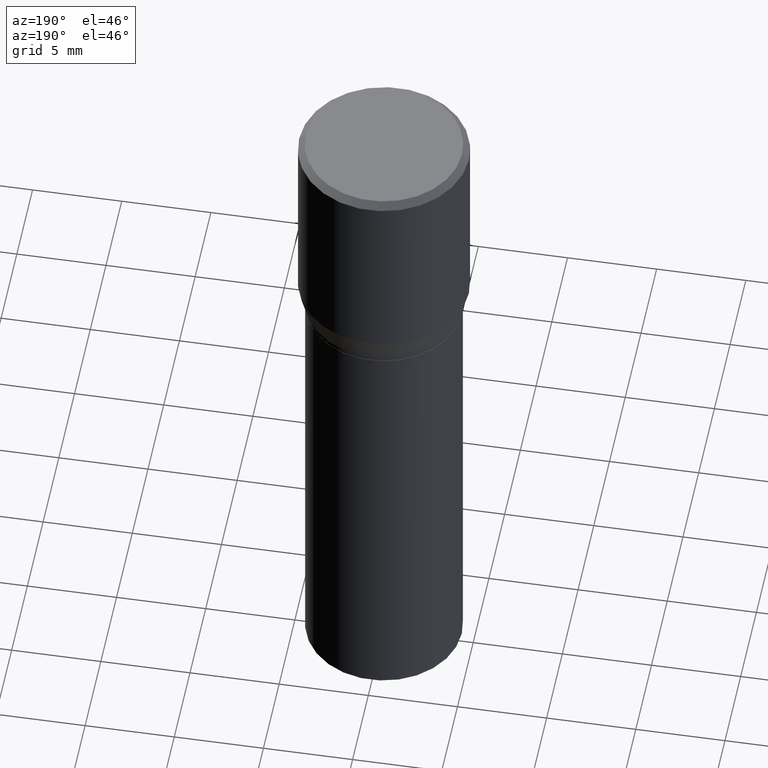
[diagram: clean part render]
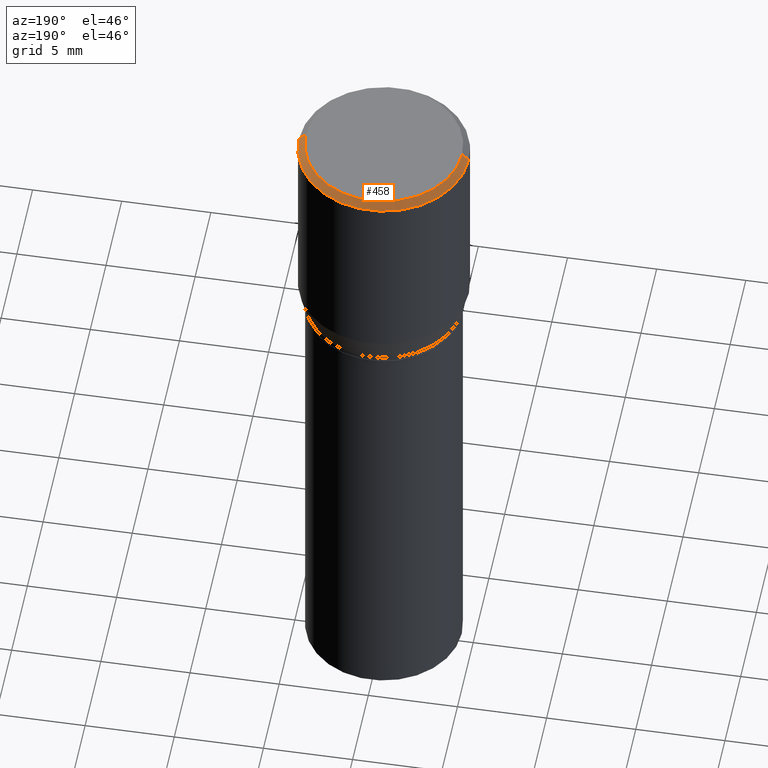
[diagram: same view with one face highlighted and labeled with its STEP entity id]
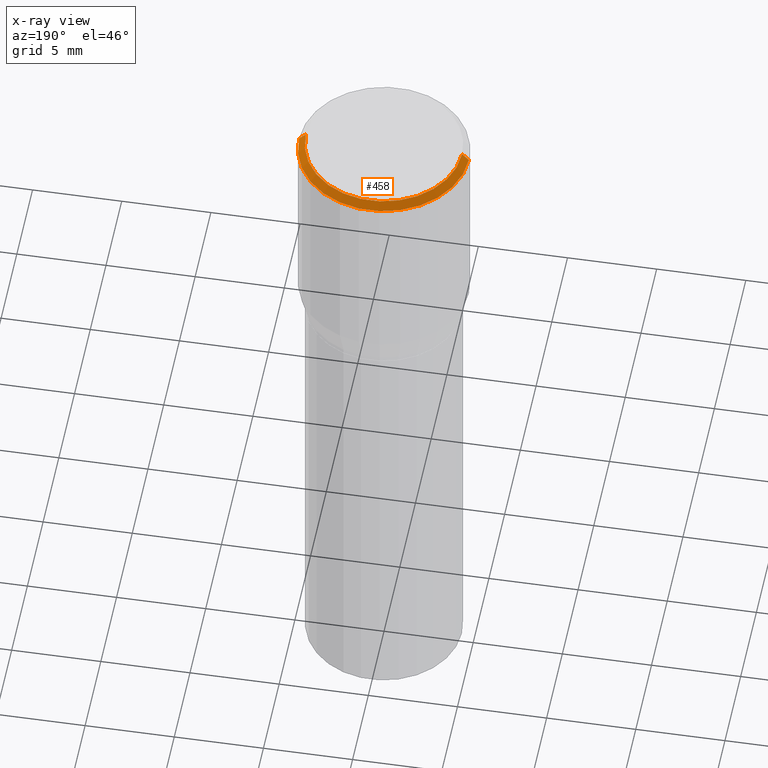
[diagram: x-ray of the same camera — body ghosted, the highlighted face saturated]
A machine part, auxiliary view. The second image highlights one B-rep face of the part: STEP entity #458.
The next image is the same camera in x-ray: the body ghosted, the highlighted face saturated — about 0% of this face is hidden behind the body in this view.
In plain terms, the highlighted conical surface has half-angle 45 deg.
Its self-contained STEP definition (entity closure, byte-faithful):
#3 = EDGE_CURVE ( 'NONE', #219, #31, #153, .T. ) ;
#14 = AXIS2_PLACEMENT_3D ( 'NONE', #132, #463, #207 ) ;
#30 = DIRECTION ( 'NONE',  ( 1.000000000000000000, -6.982962677686266711E-15, 4.876912640186324808E-29 ) ) ;
#31 = VERTEX_POINT ( 'NONE', #187 ) ;
#34 = ORIENTED_EDGE ( 'NONE', *, *, #277, .T. ) ;
#46 = FACE_OUTER_BOUND ( 'NONE', #100, .T. ) ;
#55 = AXIS2_PLACEMENT_3D ( 'NONE', #390, #60, #30 ) ;
#57 = CARTESIAN_POINT ( 'NONE',  ( 0.1725000000000000144, -1.261075749640199308E-15, -2.636744989014362231E-17 ) ) ;
#60 = DIRECTION ( 'NONE',  ( -2.445468806185136597E-29, 3.491481338843145583E-15, 1.000000000000000000 ) ) ;
#80 = DIRECTION ( 'NONE',  ( -1.000000000000000000, 6.982962677686265922E-15, 0.000000000000000000 ) ) ;
#100 = EDGE_LOOP ( 'NONE', ( #314, #270, #34, #431 ) ) ;
#112 = CIRCLE ( 'NONE', #55, 0.1725000000000000144 ) ;
#130 = VERTEX_POINT ( 'NONE', #382 ) ;
#132 = CARTESIAN_POINT ( 'NONE',  ( 3.668203209277705088E-31, -5.237222008264718399E-17, -0.01499999999999999944 ) ) ;
#147 = EDGE_CURVE ( 'NONE', #130, #203, #412, .T. ) ;
#148 = CARTESIAN_POINT ( 'NONE',  ( 3.668203209277705088E-31, -5.237222008264718399E-17, -0.01499999999999999944 ) ) ;
#153 = LINE ( 'NONE', #188, #419 ) ;
#183 = CIRCLE ( 'NONE', #14, 0.1875000000000000278 ) ;
#187 = CARTESIAN_POINT ( 'NONE',  ( 0.1875000000000000278, -1.361677722148822285E-15, -0.01499999999999999944 ) ) ;
#188 = CARTESIAN_POINT ( 'NONE',  ( 0.1875000000000000278, -1.338715594664809642E-15, -0.01499999999999999944 ) ) ;
#203 = VERTEX_POINT ( 'NONE', #378 ) ;
#207 = DIRECTION ( 'NONE',  ( 1.000000000000000000, -6.982962677686265922E-15, 0.000000000000000000 ) ) ;
#219 = VERTEX_POINT ( 'NONE', #57 ) ;
#221 = VECTOR ( 'NONE', #343, 39.37007874015748143 ) ;
#249 = DIRECTION ( 'NONE',  ( 2.445468806185136597E-29, -3.491481338843145583E-15, -1.000000000000000000 ) ) ;
#256 = CONICAL_SURFACE ( 'NONE', #422, 0.1875000000000000278, 0.7853981633974495002 ) ;
#270 = ORIENTED_EDGE ( 'NONE', *, *, #3, .T. ) ;
#277 = EDGE_CURVE ( 'NONE', #31, #203, #183, .T. ) ;
#282 = EDGE_CURVE ( 'NONE', #219, #130, #112, .T. ) ;
#314 = ORIENTED_EDGE ( 'NONE', *, *, #282, .F. ) ;
#337 = DIRECTION ( 'NONE',  ( 0.7071067811865483499, -7.319954787623257623E-15, -0.7071067811865466846 ) ) ;
#343 = DIRECTION ( 'NONE',  ( -0.7071067811865483499, 2.468850131082265738E-15, -0.7071067811865466846 ) ) ;
#375 = CARTESIAN_POINT ( 'NONE',  ( -0.1875000000000000278, 1.256933281983527732E-15, -0.01499999999999999944 ) ) ;
#378 = CARTESIAN_POINT ( 'NONE',  ( -0.1875000000000000278, 5.523056003441748841E-16, -0.01499999999999999944 ) ) ;
#382 = CARTESIAN_POINT ( 'NONE',  ( -0.1725000000000000144, 1.230747171942204192E-15, -2.636744989016075847E-17 ) ) ;
#390 = CARTESIAN_POINT ( 'NONE',  ( 6.448077620501702025E-46, -9.206145924434830208E-32, -2.636744989015224123E-17 ) ) ;
#412 = LINE ( 'NONE', #375, #221 ) ;
#419 = VECTOR ( 'NONE', #337, 39.37007874015748143 ) ;
#422 = AXIS2_PLACEMENT_3D ( 'NONE', #148, #249, #80 ) ;
#431 = ORIENTED_EDGE ( 'NONE', *, *, #147, .F. ) ;
#458 = ADVANCED_FACE ( 'NONE', ( #46 ), #256, .T. ) ;
#463 = DIRECTION ( 'NONE',  ( -2.445468806185136597E-29, 3.491481338843145583E-15, 1.000000000000000000 ) ) ;